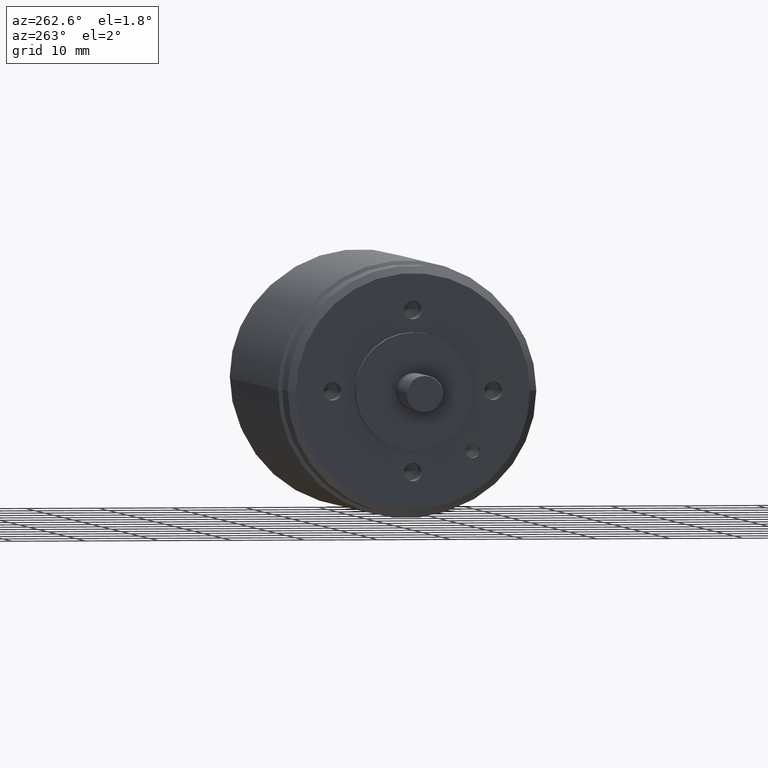
[diagram: clean part render]
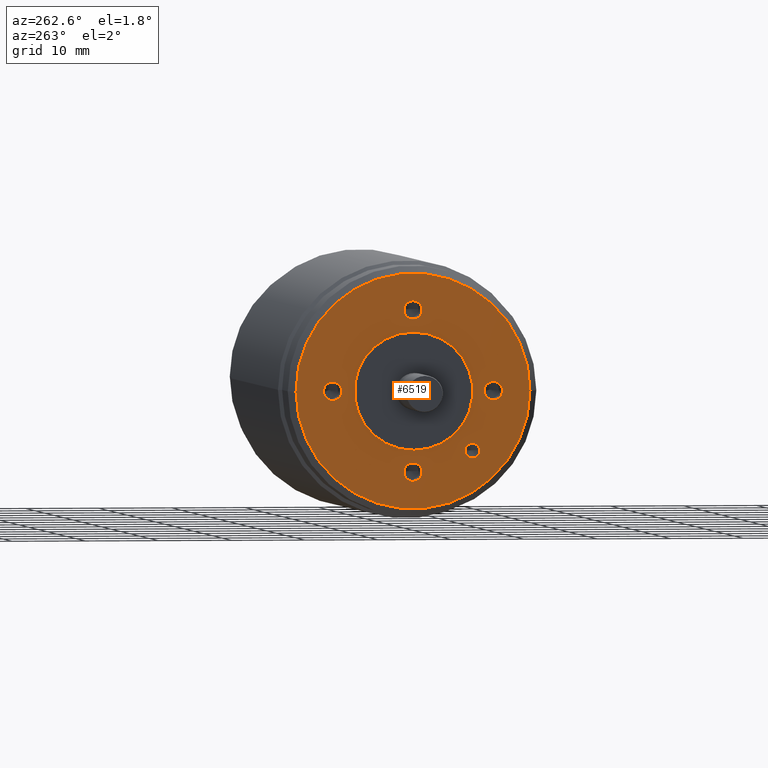
[diagram: same view with one face highlighted and labeled with its STEP entity id]
A machine part, auxiliary view. The second image highlights one B-rep face of the part: STEP entity #6519.
In plain terms, the highlighted planar face has unit normal (-1, 0, 0).
Its self-contained STEP definition (entity closure, byte-faithful):
#2251=CARTESIAN_POINT('',(-5.996E1,0.E0,0.E0));
#2252=DIRECTION('',(1.E0,0.E0,0.E0));
#2253=DIRECTION('',(0.E0,1.E0,0.E0));
#2254=AXIS2_PLACEMENT_3D('',#2251,#2252,#2253);
#2256=CARTESIAN_POINT('',(-5.996E1,0.E0,0.E0));
#2257=DIRECTION('',(-1.E0,0.E0,0.E0));
#2258=DIRECTION('',(0.E0,1.E0,0.E0));
#2259=AXIS2_PLACEMENT_3D('',#2256,#2257,#2258);
#2261=CARTESIAN_POINT('',(-5.996E1,0.E0,0.E0));
#2262=DIRECTION('',(-1.E0,0.E0,0.E0));
#2263=DIRECTION('',(0.E0,0.E0,1.E0));
#2264=AXIS2_PLACEMENT_3D('',#2261,#2262,#2263);
#2266=CARTESIAN_POINT('',(-5.996E1,0.E0,0.E0));
#2267=DIRECTION('',(-1.E0,0.E0,0.E0));
#2268=DIRECTION('',(0.E0,0.E0,-1.E0));
#2269=AXIS2_PLACEMENT_3D('',#2266,#2267,#2268);
#2271=CARTESIAN_POINT('',(-5.996E1,0.E0,1.1E1));
#2272=DIRECTION('',(-1.E0,0.E0,0.E0));
#2273=DIRECTION('',(0.E0,1.E0,0.E0));
#2274=AXIS2_PLACEMENT_3D('',#2271,#2272,#2273);
#2276=CARTESIAN_POINT('',(-5.996E1,0.E0,1.1E1));
#2277=DIRECTION('',(-1.E0,0.E0,0.E0));
#2278=DIRECTION('',(0.E0,-1.E0,0.E0));
#2279=AXIS2_PLACEMENT_3D('',#2276,#2277,#2278);
#2281=CARTESIAN_POINT('',(-5.996E1,1.1E1,0.E0));
#2282=DIRECTION('',(-1.E0,0.E0,0.E0));
#2283=DIRECTION('',(0.E0,0.E0,-1.E0));
#2284=AXIS2_PLACEMENT_3D('',#2281,#2282,#2283);
#2286=CARTESIAN_POINT('',(-5.996E1,1.1E1,0.E0));
#2287=DIRECTION('',(-1.E0,0.E0,0.E0));
#2288=DIRECTION('',(0.E0,0.E0,1.E0));
#2289=AXIS2_PLACEMENT_3D('',#2286,#2287,#2288);
#2291=CARTESIAN_POINT('',(-5.996E1,0.E0,-1.1E1));
#2292=DIRECTION('',(-1.E0,0.E0,0.E0));
#2293=DIRECTION('',(0.E0,-1.E0,0.E0));
#2294=AXIS2_PLACEMENT_3D('',#2291,#2292,#2293);
#2296=CARTESIAN_POINT('',(-5.996E1,0.E0,-1.1E1));
#2297=DIRECTION('',(-1.E0,0.E0,0.E0));
#2298=DIRECTION('',(0.E0,1.E0,0.E0));
#2299=AXIS2_PLACEMENT_3D('',#2296,#2297,#2298);
#2301=CARTESIAN_POINT('',(-5.996E1,-1.1E1,0.E0));
#2302=DIRECTION('',(-1.E0,0.E0,0.E0));
#2303=DIRECTION('',(0.E0,0.E0,1.E0));
#2304=AXIS2_PLACEMENT_3D('',#2301,#2302,#2303);
#2306=CARTESIAN_POINT('',(-5.996E1,-1.1E1,0.E0));
#2307=DIRECTION('',(-1.E0,0.E0,0.E0));
#2308=DIRECTION('',(0.E0,0.E0,-1.E0));
#2309=AXIS2_PLACEMENT_3D('',#2306,#2307,#2308);
#2311=CARTESIAN_POINT('',(-5.996E1,-8.131727983645E0,-8.131727983645E0));
#2312=DIRECTION('',(-1.E0,0.E0,0.E0));
#2313=DIRECTION('',(0.E0,1.E0,0.E0));
#2314=AXIS2_PLACEMENT_3D('',#2311,#2312,#2313);
#2316=CARTESIAN_POINT('',(-5.996E1,-8.131727983645E0,-8.131727983645E0));
#2317=DIRECTION('',(-1.E0,0.E0,0.E0));
#2318=DIRECTION('',(0.E0,-1.E0,0.E0));
#2319=AXIS2_PLACEMENT_3D('',#2316,#2317,#2318);
#3392=CARTESIAN_POINT('',(-5.996E1,1.6E1,0.E0));
#3393=VERTEX_POINT('',#3392);
#3410=CARTESIAN_POINT('',(-5.996E1,-1.6E1,0.E0));
#3411=VERTEX_POINT('',#3410);
#3610=CARTESIAN_POINT('',(-5.996E1,0.E0,8.E0));
#3611=CARTESIAN_POINT('',(-5.996E1,0.E0,-8.E0));
#3612=VERTEX_POINT('',#3610);
#3613=VERTEX_POINT('',#3611);
#3636=CARTESIAN_POINT('',(-5.996E1,1.25E0,1.1E1));
#3637=CARTESIAN_POINT('',(-5.996E1,-1.25E0,1.1E1));
#3638=VERTEX_POINT('',#3636);
#3639=VERTEX_POINT('',#3637);
#3646=CARTESIAN_POINT('',(-5.996E1,1.1E1,-1.25E0));
#3647=CARTESIAN_POINT('',(-5.996E1,1.1E1,1.25E0));
#3648=VERTEX_POINT('',#3646);
#3649=VERTEX_POINT('',#3647);
#3656=CARTESIAN_POINT('',(-5.996E1,-1.25E0,-1.1E1));
#3657=CARTESIAN_POINT('',(-5.996E1,1.25E0,-1.1E1));
#3658=VERTEX_POINT('',#3656);
#3659=VERTEX_POINT('',#3657);
#3666=CARTESIAN_POINT('',(-5.996E1,-1.1E1,1.25E0));
#3667=CARTESIAN_POINT('',(-5.996E1,-1.1E1,-1.25E0));
#3668=VERTEX_POINT('',#3666);
#3669=VERTEX_POINT('',#3667);
#3676=CARTESIAN_POINT('',(-5.996E1,-7.131727983645E0,-8.131727983645E0));
#3677=CARTESIAN_POINT('',(-5.996E1,-9.131727983645E0,-8.131727983645E0));
#3678=VERTEX_POINT('',#3676);
#3679=VERTEX_POINT('',#3677);
#6474=CARTESIAN_POINT('',(-5.996E1,0.E0,0.E0));
#6475=DIRECTION('',(-1.E0,0.E0,0.E0));
#6476=DIRECTION('',(0.E0,1.E0,0.E0));
#6477=AXIS2_PLACEMENT_3D('',#6474,#6475,#6476);
#6478=PLANE('',#6477);
#6479=ORIENTED_EDGE('',*,*,#6469,.T.);
#6480=ORIENTED_EDGE('',*,*,#6453,.F.);
#6481=EDGE_LOOP('',(#6479,#6480));
#6482=FACE_OUTER_BOUND('',#6481,.F.);
#6484=ORIENTED_EDGE('',*,*,#6483,.T.);
#6486=ORIENTED_EDGE('',*,*,#6485,.T.);
#6487=EDGE_LOOP('',(#6484,#6486));
#6488=FACE_BOUND('',#6487,.F.);
#6490=ORIENTED_EDGE('',*,*,#6489,.T.);
#6492=ORIENTED_EDGE('',*,*,#6491,.T.);
#6493=EDGE_LOOP('',(#6490,#6492));
#6494=FACE_BOUND('',#6493,.F.);
#6496=ORIENTED_EDGE('',*,*,#6495,.T.);
#6498=ORIENTED_EDGE('',*,*,#6497,.T.);
#6499=EDGE_LOOP('',(#6496,#6498));
#6500=FACE_BOUND('',#6499,.F.);
#6502=ORIENTED_EDGE('',*,*,#6501,.T.);
#6504=ORIENTED_EDGE('',*,*,#6503,.T.);
#6505=EDGE_LOOP('',(#6502,#6504));
#6506=FACE_BOUND('',#6505,.F.);
#6508=ORIENTED_EDGE('',*,*,#6507,.T.);
#6510=ORIENTED_EDGE('',*,*,#6509,.T.);
#6511=EDGE_LOOP('',(#6508,#6510));
#6512=FACE_BOUND('',#6511,.F.);
#6514=ORIENTED_EDGE('',*,*,#6513,.T.);
#6516=ORIENTED_EDGE('',*,*,#6515,.T.);
#6517=EDGE_LOOP('',(#6514,#6516));
#6518=FACE_BOUND('',#6517,.F.);
#6519=ADVANCED_FACE('',(#6482,#6488,#6494,#6500,#6506,#6512,#6518),#6478,.T.);
#2255=CIRCLE('',#2254,1.6E1);
#2260=CIRCLE('',#2259,1.6E1);
#2265=CIRCLE('',#2264,8.E0);
#2270=CIRCLE('',#2269,8.E0);
#2275=CIRCLE('',#2274,1.25E0);
#2280=CIRCLE('',#2279,1.25E0);
#2285=CIRCLE('',#2284,1.25E0);
#2290=CIRCLE('',#2289,1.25E0);
#2295=CIRCLE('',#2294,1.25E0);
#2300=CIRCLE('',#2299,1.25E0);
#2305=CIRCLE('',#2304,1.25E0);
#2310=CIRCLE('',#2309,1.25E0);
#2315=CIRCLE('',#2314,1.E0);
#2320=CIRCLE('',#2319,1.E0);
#6453=EDGE_CURVE('',#3393,#3411,#2260,.T.);
#6469=EDGE_CURVE('',#3393,#3411,#2255,.T.);
#6483=EDGE_CURVE('',#3612,#3613,#2265,.T.);
#6485=EDGE_CURVE('',#3613,#3612,#2270,.T.);
#6489=EDGE_CURVE('',#3638,#3639,#2275,.T.);
#6491=EDGE_CURVE('',#3639,#3638,#2280,.T.);
#6495=EDGE_CURVE('',#3648,#3649,#2285,.T.);
#6497=EDGE_CURVE('',#3649,#3648,#2290,.T.);
#6501=EDGE_CURVE('',#3658,#3659,#2295,.T.);
#6503=EDGE_CURVE('',#3659,#3658,#2300,.T.);
#6507=EDGE_CURVE('',#3668,#3669,#2305,.T.);
#6509=EDGE_CURVE('',#3669,#3668,#2310,.T.);
#6513=EDGE_CURVE('',#3678,#3679,#2315,.T.);
#6515=EDGE_CURVE('',#3679,#3678,#2320,.T.);